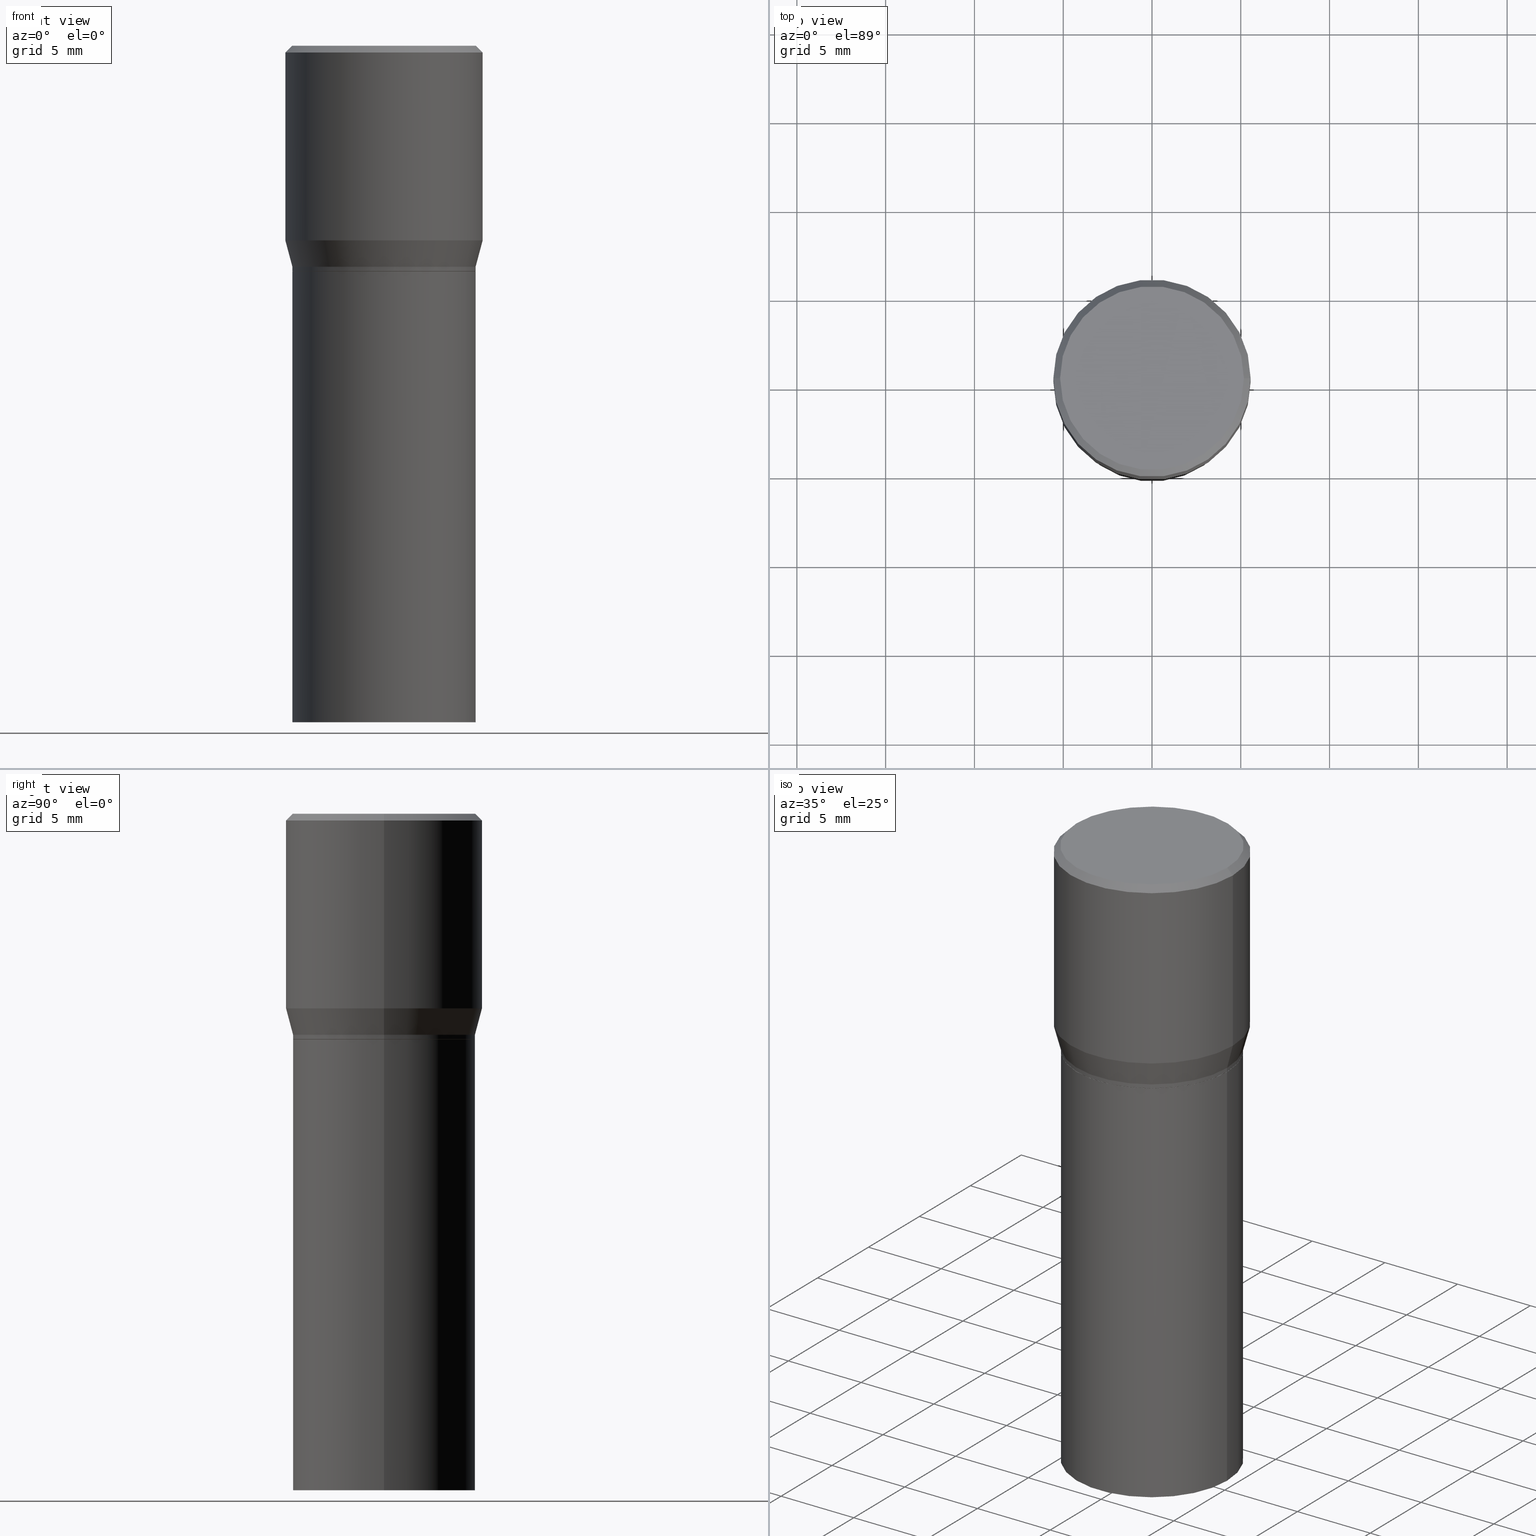
[diagram: canonical four-view strip — front | top / right | iso, engineering-drawing reading convention]
A machine part, canonical four-view strip (front | top / right | iso — engineering-drawing reading convention). The complete STEP part file that produces these views, byte-faithful:
ISO-10303-21;
HEADER;
FILE_DESCRIPTION (( 'STEP AP203' ),
    '1' );
FILE_NAME ('39551.STEP',
    '2024-03-12T19:03:16',
    ( '' ),
    ( '' ),
    'SwSTEP 2.0',
    'SolidWorks 2023',
    '' );
FILE_SCHEMA (( 'CONFIG_CONTROL_DESIGN' ));
ENDSEC;

DATA;
#1 = DIRECTION ( 'NONE',  ( -2.445468806185136597E-29, 3.491481338843145583E-15, 1.000000000000000000 ) ) ;
#2 = FACE_OUTER_BOUND ( 'NONE', #45, .T. ) ;
#3 = ADVANCED_FACE ( 'NONE', ( #2 ), #296, .F. ) ;
#4 = VERTEX_POINT ( 'NONE', #233 ) ;
#5 = DIRECTION ( 'NONE',  ( 2.438088387897960049E-29, -3.491481338843145188E-15, -1.000000000000000000 ) ) ;
#6 = EDGE_LOOP ( 'NONE', ( #171, #259 ) ) ;
#7 = ORIENTED_EDGE ( 'NONE', *, *, #75, .F. ) ;
#8 = DIRECTION ( 'NONE',  ( -2.445468806185136597E-29, 3.491481338843145583E-15, 1.000000000000000000 ) ) ;
#9 = AXIS2_PLACEMENT_3D ( 'NONE', #32, #358, #170 ) ;
#10 = APPROVAL_PERSON_ORGANIZATION ( #112, #124, #216 ) ;
#11 = DIRECTION ( 'NONE',  ( -2.445468806185136597E-29, 3.491481338843145583E-15, 1.000000000000000000 ) ) ;
#12 = DIRECTION ( 'NONE',  ( -2.445468806185136877E-29, 3.491481338843145188E-15, 1.000000000000000000 ) ) ;
#13 = SHAPE_DEFINITION_REPRESENTATION ( #65, #16 ) ;
#14 = ORIENTED_EDGE ( 'NONE', *, *, #75, .T. ) ;
#15 = CARTESIAN_POINT ( 'NONE',  ( 3.576687321579069994E-29, -5.368277968210015545E-15, -1.500000000000000222 ) ) ;
#16 = ADVANCED_BREP_SHAPE_REPRESENTATION ( '39551', ( #213, #49, #403 ), #249 ) ;
#17 = FACE_OUTER_BOUND ( 'NONE', #205, .T. ) ;
#18 = VERTEX_POINT ( 'NONE', #134 ) ;
#19 = EDGE_CURVE ( 'NONE', #73, #389, #262, .T. ) ;
#20 = DIRECTION ( 'NONE',  ( -1.000000000000000000, 6.982962677686266711E-15, 0.000000000000000000 ) ) ;
#21 = PERSON_AND_ORGANIZATION_ROLE ( 'creator' ) ;
#22 = AXIS2_PLACEMENT_3D ( 'NONE', #69, #181, #142 ) ;
#23 = APPROVAL_PERSON_ORGANIZATION ( #442, #24, #370 ) ;
#24 = APPROVAL ( #448, 'UNSPECIFIED' ) ;
#25 = ORIENTED_EDGE ( 'NONE', *, *, #329, .F. ) ;
#26 = CC_DESIGN_PERSON_AND_ORGANIZATION_ASSIGNMENT ( #460, #428, ( #62 ) ) ;
#27 = LINE ( 'NONE', #269, #381 ) ;
#28 = DATE_AND_TIME ( #61, #304 ) ;
#29 = PERSON_AND_ORGANIZATION ( #240, #209 ) ;
#30 = DIRECTION ( 'NONE',  ( 1.000000000000000000, -6.982962677686266711E-15, 4.876176775795935793E-29 ) ) ;
#31 = CIRCLE ( 'NONE', #288, 0.2031000000000000028 ) ;
#32 = CARTESIAN_POINT ( 'NONE',  ( 1.222734403092568719E-29, -1.745740669421573186E-15, -0.5000000000000001110 ) ) ;
#33 = CARTESIAN_POINT ( 'NONE',  ( 0.2031000000000000028, -3.162234648590232655E-15, -0.4995000000000001661 ) ) ;
#34 = LINE ( 'NONE', #67, #157 ) ;
#35 = DIRECTION ( 'NONE',  ( 1.000000000000000000, -6.982962677686266711E-15, 4.876176775795935232E-29 ) ) ;
#36 = EDGE_LOOP ( 'NONE', ( #224, #309, #203, #357 ) ) ;
#37 = CC_DESIGN_PERSON_AND_ORGANIZATION_ASSIGNMENT ( #152, #160, ( #201 ) ) ;
#38 = FACE_OUTER_BOUND ( 'NONE', #362, .T. ) ;
#39 = ORIENTED_EDGE ( 'NONE', *, *, #459, .T. ) ;
#40 = CIRCLE ( 'NONE', #138, 0.2187500000000000000 ) ;
#41 = DIRECTION ( 'NONE',  ( 1.000000000000000000, -6.982962677686265922E-15, 4.876176775795935793E-29 ) ) ;
#42 = CARTESIAN_POINT ( 'NONE',  ( 0.2031000000000000028, -6.655461728102798952E-15, -1.500000000000000222 ) ) ;
#43 = VERTEX_POINT ( 'NONE', #175 ) ;
#44 = DIRECTION ( 'NONE',  ( 1.000000000000000000, -6.982962677686266711E-15, 0.000000000000000000 ) ) ;
#45 = EDGE_LOOP ( 'NONE', ( #52, #198 ) ) ;
#46 = DIRECTION ( 'NONE',  ( 1.000000000000000000, -6.982962677686266711E-15, 4.876176775795935793E-29 ) ) ;
#47 = FACE_OUTER_BOUND ( 'NONE', #108, .T. ) ;
#48 = CIRCLE ( 'NONE', #416, 0.2031000000000000583 ) ;
#49 = MANIFOLD_SOLID_BREP ( 'Body-Move/Copy2[2]', #178 ) ;
#50 = CC_DESIGN_PERSON_AND_ORGANIZATION_ASSIGNMENT ( #56, #21, ( #220 ) ) ;
#51 = DATE_TIME_ROLE ( 'classification_date' ) ;
#52 = ORIENTED_EDGE ( 'NONE', *, *, #145, .T. ) ;
#53 = DIRECTION ( 'NONE',  ( 1.000000000000000000, -6.982962677686265922E-15, 0.000000000000000000 ) ) ;
#54 = AXIS2_PLACEMENT_3D ( 'NONE', #136, #98, #295 ) ;
#55 = LOCAL_TIME ( 15, 3, 16.00000000000000000, #367 ) ;
#56 = PERSON_AND_ORGANIZATION ( #240, #209 ) ;
#57 = ORIENTED_EDGE ( 'NONE', *, *, #361, .F. ) ;
#58 = ORIENTED_EDGE ( 'NONE', *, *, #236, .T. ) ;
#59 = DIRECTION ( 'NONE',  ( 1.000000000000000000, -6.982962677686266711E-15, 0.000000000000000000 ) ) ;
#60 = CIRCLE ( 'NONE', #9, 0.2026000000000000023 ) ;
#61 = CALENDAR_DATE ( 2024, 12, 3 ) ;
#62 = PRODUCT_DEFINITION_FORMATION_WITH_SPECIFIED_SOURCE ( 'ANY', '', #421, .NOT_KNOWN. ) ;
#63 = CARTESIAN_POINT ( 'NONE',  ( 1.222734403092568719E-29, -1.745740669421573186E-15, -0.5000000000000001110 ) ) ;
#64 = EDGE_CURVE ( 'NONE', #389, #73, #450, .T. ) ;
#65 = PRODUCT_DEFINITION_SHAPE ( 'NONE', 'NONE',  #220 ) ;
#66 = AXIS2_PLACEMENT_3D ( 'NONE', #179, #324, #44 ) ;
#67 = CARTESIAN_POINT ( 'NONE',  ( -0.2187500000000000000, 1.475150865661223567E-15, -0.01499999999999999944 ) ) ;
#68 = VERTEX_POINT ( 'NONE', #430 ) ;
#69 = CARTESIAN_POINT ( 'NONE',  ( 0.000000000000000000, 0.000000000000000000, 0.000000000000000000 ) ) ;
#70 = ORIENTED_EDGE ( 'NONE', *, *, #19, .T. ) ;
#71 = ORIENTED_EDGE ( 'NONE', *, *, #314, .T. ) ;
#72 = FACE_OUTER_BOUND ( 'NONE', #244, .T. ) ;
#73 = VERTEX_POINT ( 'NONE', #97 ) ;
#74 = CARTESIAN_POINT ( 'NONE',  ( 0.000000000000000000, 0.000000000000000000, 0.000000000000000000 ) ) ;
#75 = EDGE_CURVE ( 'NONE', #113, #4, #437, .T. ) ;
#76 = CARTESIAN_POINT ( 'NONE',  ( 0.000000000000000000, 0.000000000000000000, 0.000000000000000000 ) ) ;
#77 = PLANE ( 'NONE',  #323 ) ;
#78 = CARTESIAN_POINT ( 'NONE',  ( 1.198279715030717173E-29, -1.710825856033141537E-15, -0.4900000000000001021 ) ) ;
#79 = CARTESIAN_POINT ( 'NONE',  ( -0.2031000000000000583, -1.101508221355132898E-16, -0.4900000000000001021 ) ) ;
#80 = AXIS2_PLACEMENT_3D ( 'NONE', #63, #387, #215 ) ;
#81 = DIMENSIONAL_EXPONENTS ( 1.000000000000000000, 0.000000000000000000, 0.000000000000000000, 0.000000000000000000, 0.000000000000000000, 0.000000000000000000, 0.000000000000000000 ) ;
#82 = EDGE_CURVE ( 'NONE', #307, #325, #359, .T. ) ;
#83 = CALENDAR_DATE ( 2024, 12, 3 ) ;
#84 = ORIENTED_EDGE ( 'NONE', *, *, #260, .F. ) ;
#85 = ORIENTED_EDGE ( 'NONE', *, *, #434, .F. ) ;
#86 = CARTESIAN_POINT ( 'NONE',  ( -0.2031000000000000028, -2.048369042514382480E-15, -1.500000000000000222 ) ) ;
#87 = ORIENTED_EDGE ( 'NONE', *, *, #361, .T. ) ;
#88 = AXIS2_PLACEMENT_3D ( 'NONE', #388, #435, #107 ) ;
#89 = AXIS2_PLACEMENT_3D ( 'NONE', #456, #197, #20 ) ;
#90 = ADVANCED_FACE ( 'NONE', ( #405 ), #212, .T. ) ;
#91 = MECHANICAL_CONTEXT ( 'NONE', #127, 'mechanical' ) ;
#92 = CARTESIAN_POINT ( 'NONE',  ( -0.2026000000000000023, -3.061810867716101928E-16, -0.5000000000000001110 ) ) ;
#93 = VECTOR ( 'NONE', #12, 39.37007874015748143 ) ;
#94 = CARTESIAN_POINT ( 'NONE',  ( -2.592568563193567003E-45, 3.701500806376036554E-31, 1.060151966214568974E-16 ) ) ;
#95 = AXIS2_PLACEMENT_3D ( 'NONE', #15, #372, #182 ) ;
#96 = EDGE_CURVE ( 'NONE', #43, #401, #463, .T. ) ;
#97 = CARTESIAN_POINT ( 'NONE',  ( -0.2037499999999999867, 1.448964755619900421E-15, 1.060151966214468518E-16 ) ) ;
#98 = DIRECTION ( 'NONE',  ( -2.445468806185136597E-29, 3.491481338843145583E-15, 1.000000000000000000 ) ) ;
#99 = ORIENTED_EDGE ( 'NONE', *, *, #346, .F. ) ;
#100 = LINE ( 'NONE', #391, #386 ) ;
#101 = DIRECTION ( 'NONE',  ( 1.000000000000000000, -6.982962677686264344E-15, 0.000000000000000000 ) ) ;
#102 = ADVANCED_FACE ( 'NONE', ( #287 ), #384, .T. ) ;
#103 = CONICAL_SURFACE ( 'NONE', #278, 0.2026000000000000023, 0.7853981633974824739 ) ;
#104 = VERTEX_POINT ( 'NONE', #33 ) ;
#105 = LINE ( 'NONE', #331, #128 ) ;
#106 = DIRECTION ( 'NONE',  ( -2.445468806185136597E-29, 3.491481338843145583E-15, 1.000000000000000000 ) ) ;
#107 = DIRECTION ( 'NONE',  ( -1.000000000000000000, 6.982962677686265922E-15, -4.876176775795935793E-29 ) ) ;
#108 = EDGE_LOOP ( 'NONE', ( #87, #227, #165, #85 ) ) ;
#109 = CARTESIAN_POINT ( 'NONE',  ( 3.668203209277705088E-31, -5.237222008264718399E-17, -0.01499999999999999944 ) ) ;
#110 = COORDINATED_UNIVERSAL_TIME_OFFSET ( 5, 0, .BEHIND. ) ;
#111 = FACE_OUTER_BOUND ( 'NONE', #297, .T. ) ;
#112 = PERSON_AND_ORGANIZATION ( #240, #209 ) ;
#113 = VERTEX_POINT ( 'NONE', #173 ) ;
#114 = DIRECTION ( 'NONE',  ( 1.000000000000000000, -6.982962677686266711E-15, 0.000000000000000000 ) ) ;
#115 = VECTOR ( 'NONE', #286, 39.37007874015748143 ) ;
#116 = DATE_AND_TIME ( #267, #226 ) ;
#117 = DATE_AND_TIME ( #207, #248 ) ;
#118 = DIRECTION ( 'NONE',  ( 1.000000000000000000, -6.982962677686268288E-15, 0.000000000000000000 ) ) ;
#119 = DATE_AND_TIME ( #83, #55 ) ;
#120 = ORIENTED_EDGE ( 'NONE', *, *, #314, .F. ) ;
#121 = FACE_OUTER_BOUND ( 'NONE', #246, .T. ) ;
#122 = AXIS2_PLACEMENT_3D ( 'NONE', #422, #429, #263 ) ;
#123 = APPROVAL_DATE_TIME ( #28, #424 ) ;
#124 = APPROVAL ( #438, 'UNSPECIFIED' ) ;
#125 = UNCERTAINTY_MEASURE_WITH_UNIT (LENGTH_MEASURE( 1.000000000000000082E-05 ), #255, 'distance_accuracy_value', 'NONE');
#126 = CARTESIAN_POINT ( 'NONE',  ( -0.2031000000000000028, 1.443112296328763497E-15, -9.990357168307714203E-30 ) ) ;
#127 = APPLICATION_CONTEXT ( 'configuration controlled 3d designs of mechanical parts and assemblies' ) ;
#128 = VECTOR ( 'NONE', #294, 39.37007874015748143 ) ;
#129 = DIRECTION ( 'NONE',  ( 0.7071067811865715536, -2.468850131082509496E-15, 0.7071067811865232589 ) ) ;
#130 = CARTESIAN_POINT ( 'NONE',  ( 1.222734403092568719E-29, -1.745740669421573186E-15, -0.5000000000000001110 ) ) ;
#131 = CARTESIAN_POINT ( 'NONE',  ( -0.2031000000000000028, -3.008826324233883330E-16, -0.4995000000000001661 ) ) ;
#132 = EDGE_CURVE ( 'NONE', #401, #104, #321, .T. ) ;
#133 = LINE ( 'NONE', #457, #322 ) ;
#134 = CARTESIAN_POINT ( 'NONE',  ( -0.2187500000000000000, 7.746759649129616577E-16, -0.01499999999999999944 ) ) ;
#135 = DIRECTION ( 'NONE',  ( -2.445468806185136597E-29, 3.491481338843145583E-15, 1.000000000000000000 ) ) ;
#136 = CARTESIAN_POINT ( 'NONE',  ( 0.000000000000000000, 0.000000000000000000, 0.000000000000000000 ) ) ;
#137 = DIRECTION ( 'NONE',  ( -2.445468806185136597E-29, 3.491481338843145583E-15, 1.000000000000000000 ) ) ;
#138 = AXIS2_PLACEMENT_3D ( 'NONE', #311, #281, #59 ) ;
#139 = CARTESIAN_POINT ( 'NONE',  ( 1.222734403092568719E-29, -1.745740669421573186E-15, -0.5000000000000001110 ) ) ;
#140 = DIRECTION ( 'NONE',  ( 1.000000000000000000, -6.982962677686266711E-15, 4.875065411617369217E-29 ) ) ;
#141 = DIRECTION ( 'NONE',  ( -2.445468806185136597E-29, 3.491481338843145583E-15, 1.000000000000000000 ) ) ;
#142 = DIRECTION ( 'NONE',  ( 1.000000000000000000, -6.982962677686266711E-15, 4.876176775795935793E-29 ) ) ;
#143 = ORIENTED_EDGE ( 'NONE', *, *, #199, .F. ) ;
#144 = DIRECTION ( 'NONE',  ( -1.000000000000000000, 6.982962677686265922E-15, -4.876176775795935793E-29 ) ) ;
#145 = EDGE_CURVE ( 'NONE', #378, #237, #192, .T. ) ;
#146 = ORIENTED_EDGE ( 'NONE', *, *, #199, .T. ) ;
#147 = DIRECTION ( 'NONE',  ( -2.445468806185136597E-29, 3.491481338843145583E-15, 1.000000000000000000 ) ) ;
#148 = EDGE_CURVE ( 'NONE', #73, #18, #34, .T. ) ;
#149 = AXIS2_PLACEMENT_3D ( 'NONE', #315, #326, #400 ) ;
#150 = CC_DESIGN_SECURITY_CLASSIFICATION ( #201, ( #62 ) ) ;
#151 = CARTESIAN_POINT ( 'NONE',  ( 3.668203209277704895E-29, -5.237222008264718177E-15, -1.500000000000000222 ) ) ;
#152 = PERSON_AND_ORGANIZATION ( #240, #209 ) ;
#153 = ORIENTED_EDGE ( 'NONE', *, *, #96, .F. ) ;
#154 = DIRECTION ( 'NONE',  ( -2.445468806185136877E-29, 3.491481338843145188E-15, 1.000000000000000000 ) ) ;
#155 = EDGE_CURVE ( 'NONE', #449, #68, #48, .T. ) ;
#156 = ORIENTED_EDGE ( 'NONE', *, *, #251, .F. ) ;
#157 = VECTOR ( 'NONE', #223, 39.37007874015748143 ) ;
#158 = APPROVAL_PERSON_ORGANIZATION ( #29, #424, #349 ) ;
#159 = DIRECTION ( 'NONE',  ( 1.000000000000000000, -6.982962677686265922E-15, 0.000000000000000000 ) ) ;
#160 = PERSON_AND_ORGANIZATION_ROLE ( 'classification_officer' ) ;
#161 = CALENDAR_DATE ( 2024, 12, 3 ) ;
#162 = AXIS2_PLACEMENT_3D ( 'NONE', #74, #106, #46 ) ;
#163 = LOCAL_TIME ( 15, 3, 16.00000000000000000, #202 ) ;
#164 = EDGE_LOOP ( 'NONE', ( #188, #229, #327, #280 ) ) ;
#165 = ORIENTED_EDGE ( 'NONE', *, *, #459, .F. ) ;
#166 = CC_DESIGN_PERSON_AND_ORGANIZATION_ASSIGNMENT ( #340, #374, ( #62 ) ) ;
#167 = ADVANCED_FACE ( 'NONE', ( #348 ), #402, .T. ) ;
#168 = DIRECTION ( 'NONE',  ( -2.445468806185136597E-29, 3.491481338843145583E-15, 1.000000000000000000 ) ) ;
#169 = AXIS2_PLACEMENT_3D ( 'NONE', #109, #268, #335 ) ;
#170 = DIRECTION ( 'NONE',  ( 1.000000000000000000, -6.982962677686268288E-15, 0.000000000000000000 ) ) ;
#171 = ORIENTED_EDGE ( 'NONE', *, *, #204, .F. ) ;
#172 = COORDINATED_UNIVERSAL_TIME_OFFSET ( 5, 0, .BEHIND. ) ;
#173 = CARTESIAN_POINT ( 'NONE',  ( -0.2187500000000000000, 4.741191543335144142E-17, -0.4315934048615475138 ) ) ;
#174 = DIRECTION ( 'NONE',  ( 1.000000000000000000, -6.982962677686265922E-15, 0.000000000000000000 ) ) ;
#175 = CARTESIAN_POINT ( 'NONE',  ( -0.2026000000000000023, -3.035318595974993861E-16, -0.5000000000000001110 ) ) ;
#176 = DIRECTION ( 'NONE',  ( 1.000000000000000000, -6.982962677686264344E-15, 0.000000000000000000 ) ) ;
#177 =( LENGTH_UNIT ( ) NAMED_UNIT ( * ) SI_UNIT ( $, .METRE. ) );
#178 = CLOSED_SHELL ( 'NONE', ( #310, #167, #383, #441, #415, #283, #90, #452, #379, #409, #305, #377 ) ) ;
#179 = CARTESIAN_POINT ( 'NONE',  ( 1.221511668689476057E-29, -1.743994928752151682E-15, -0.4995000000000001661 ) ) ;
#180 = AXIS2_PLACEMENT_3D ( 'NONE', #76, #393, #30 ) ;
#181 = DIRECTION ( 'NONE',  ( -2.445468806185136597E-29, 3.491481338843145583E-15, 1.000000000000000000 ) ) ;
#182 = DIRECTION ( 'NONE',  ( 1.000000000000000000, -6.982962677686265922E-15, 4.876176775795935793E-29 ) ) ;
#183 = ORIENTED_EDGE ( 'NONE', *, *, #148, .T. ) ;
#184 = CC_DESIGN_DATE_AND_TIME_ASSIGNMENT ( #116, #51, ( #201 ) ) ;
#185 = CC_DESIGN_DATE_AND_TIME_ASSIGNMENT ( #117, #344, ( #220 ) ) ;
#186 = EDGE_LOOP ( 'NONE', ( #70, #187 ) ) ;
#187 = ORIENTED_EDGE ( 'NONE', *, *, #64, .T. ) ;
#188 = ORIENTED_EDGE ( 'NONE', *, *, #241, .F. ) ;
#189 = PLANE ( 'NONE',  #253 ) ;
#190 = EDGE_LOOP ( 'NONE', ( #354, #14, #308, #99 ) ) ;
#191 = CARTESIAN_POINT ( 'NONE',  ( 0.2031000000000000028, -1.418239719838080775E-15, 9.903515031641546145E-30 ) ) ;
#192 = CIRCLE ( 'NONE', #80, 0.2031000000000000028 ) ;
#193 = ORIENTED_EDGE ( 'NONE', *, *, #352, .F. ) ;
#194 = CONICAL_SURFACE ( 'NONE', #169, 0.2187500000000000000, 0.7853981633974450594 ) ;
#195 = CARTESIAN_POINT ( 'NONE',  ( 0.2037499999999999867, -1.475466312070559275E-15, 1.060151966214670170E-16 ) ) ;
#196 = DIRECTION ( 'NONE',  ( -0.2588190451025211836, 5.211531920934547886E-15, 0.9659258262890679791 ) ) ;
#197 = DIRECTION ( 'NONE',  ( 2.445468806185136597E-29, -3.491481338843145583E-15, -1.000000000000000000 ) ) ;
#198 = ORIENTED_EDGE ( 'NONE', *, *, #260, .T. ) ;
#199 = EDGE_CURVE ( 'NONE', #401, #43, #60, .T. ) ;
#200 = CIRCLE ( 'NONE', #312, 0.2031000000000000028 ) ;
#201 = SECURITY_CLASSIFICATION ( '', '', #404 ) ;
#202 = COORDINATED_UNIVERSAL_TIME_OFFSET ( 5, 0, .BEHIND. ) ;
#203 = ORIENTED_EDGE ( 'NONE', *, *, #247, .T. ) ;
#204 = EDGE_CURVE ( 'NONE', #325, #307, #200, .T. ) ;
#205 = EDGE_LOOP ( 'NONE', ( #276, #465, #156, #222 ) ) ;
#206 = CARTESIAN_POINT ( 'NONE',  ( 1.222734403092568719E-29, -1.745740669421573186E-15, -0.5000000000000001110 ) ) ;
#207 = CALENDAR_DATE ( 2024, 12, 3 ) ;
#208 = VECTOR ( 'NONE', #129, 39.37007874015748854 ) ;
#209 = ORGANIZATION ( 'UNSPECIFIED', 'UNSPECIFIED', '' ) ;
#210 = EDGE_CURVE ( 'NONE', #355, #449, #133, .T. ) ;
#211 = CARTESIAN_POINT ( 'NONE',  ( 1.198279715030717173E-29, -1.710825856033141537E-15, -0.4900000000000001021 ) ) ;
#212 = CYLINDRICAL_SURFACE ( 'NONE', #270, 0.2187500000000000000 ) ;
#213 = MANIFOLD_SOLID_BREP ( 'Body-Move/Copy2[1]', #316 ) ;
#214 = DIRECTION ( 'NONE',  ( 0.000000000000000000, 0.000000000000000000, 1.000000000000000000 ) ) ;
#215 = DIRECTION ( 'NONE',  ( 1.000000000000000000, -6.982962677686265922E-15, 0.000000000000000000 ) ) ;
#216 = APPROVAL_ROLE ( '' ) ;
#217 = PERSON_AND_ORGANIZATION_ROLE ( 'design_owner' ) ;
#218 = CARTESIAN_POINT ( 'NONE',  ( 3.668203209277704895E-29, -5.237222008264718177E-15, -1.500000000000000222 ) ) ;
#219 = PRODUCT_RELATED_PRODUCT_CATEGORY ( 'detail', '', ( #421 ) ) ;
#220 = PRODUCT_DEFINITION ( 'UNKNOWN', '', #62, #353 ) ;
#221 = CARTESIAN_POINT ( 'NONE',  ( -2.592568563193567003E-45, 3.701500806376036554E-31, 1.060151966214568974E-16 ) ) ;
#222 = ORIENTED_EDGE ( 'NONE', *, *, #247, .F. ) ;
#223 = DIRECTION ( 'NONE',  ( -0.7071067811865452413, 2.468850131082233000E-15, -0.7071067811865497932 ) ) ;
#224 = ORIENTED_EDGE ( 'NONE', *, *, #210, .F. ) ;
#225 = VECTOR ( 'NONE', #333, 39.37007874015748143 ) ;
#226 = LOCAL_TIME ( 15, 3, 16.00000000000000000, #110 ) ;
#227 = ORIENTED_EDGE ( 'NONE', *, *, #385, .T. ) ;
#228 = LINE ( 'NONE', #191, #225 ) ;
#229 = ORIENTED_EDGE ( 'NONE', *, *, #96, .T. ) ;
#230 = FACE_OUTER_BOUND ( 'NONE', #394, .T. ) ;
#231 = APPLICATION_CONTEXT ( 'configuration controlled 3d designs of mechanical parts and assemblies' ) ;
#232 = FACE_OUTER_BOUND ( 'NONE', #36, .T. ) ;
#233 = CARTESIAN_POINT ( 'NONE',  ( 0.2187500000000000000, -3.034423404785738170E-15, -0.4315934048615475138 ) ) ;
#234 = ORIENTED_EDGE ( 'NONE', *, *, #289, .T. ) ;
#235 = CARTESIAN_POINT ( 'NONE',  ( 1.221511668689476057E-29, -1.743994928752151682E-15, -0.4995000000000001661 ) ) ;
#236 = EDGE_CURVE ( 'NONE', #307, #237, #420, .T. ) ;
#237 = VERTEX_POINT ( 'NONE', #423 ) ;
#238 = CIRCLE ( 'NONE', #332, 0.2187500000000000000 ) ;
#239 = PLANE ( 'NONE',  #95 ) ;
#240 = PERSON ( 'UNSPECIFIED', 'UNSPECIFIED', 'UNSPECIFIED', ('UNSPECIFIED'), ('UNSPECIFIED'), ('UNSPECIFIED') ) ;
#241 = EDGE_CURVE ( 'NONE', #43, #355, #282, .T. ) ;
#242 = CIRCLE ( 'NONE', #382, 0.2031000000000000583 ) ;
#243 = AXIS2_PLACEMENT_3D ( 'NONE', #264, #266, #397 ) ;
#244 = EDGE_LOOP ( 'NONE', ( #143, #153 ) ) ;
#245 = DATE_AND_TIME ( #161, #163 ) ;
#246 = EDGE_LOOP ( 'NONE', ( #363, #343, #71, #7 ) ) ;
#247 = EDGE_CURVE ( 'NONE', #104, #68, #440, .T. ) ;
#248 = LOCAL_TIME ( 15, 3, 16.00000000000000000, #380 ) ;
#249 =( GEOMETRIC_REPRESENTATION_CONTEXT ( 3 ) GLOBAL_UNCERTAINTY_ASSIGNED_CONTEXT ( ( #125 ) ) GLOBAL_UNIT_ASSIGNED_CONTEXT ( ( #255, #427, #458 ) ) REPRESENTATION_CONTEXT ( 'NONE', 'WORKASPACE' ) );
#250 = DIRECTION ( 'NONE',  ( -2.445468806185136597E-29, 3.491481338843145583E-15, 1.000000000000000000 ) ) ;
#251 = EDGE_CURVE ( 'NONE', #68, #449, #242, .T. ) ;
#252 = AXIS2_PLACEMENT_3D ( 'NONE', #151, #338, #101 ) ;
#253 = AXIS2_PLACEMENT_3D ( 'NONE', #298, #436, #41 ) ;
#254 = ORIENTED_EDGE ( 'NONE', *, *, #236, .F. ) ;
#255 =( CONVERSION_BASED_UNIT ( 'INCH', #356 ) LENGTH_UNIT ( ) NAMED_UNIT ( #81 ) );
#256 = ORIENTED_EDGE ( 'NONE', *, *, #204, .T. ) ;
#257 = LINE ( 'NONE', #461, #303 ) ;
#258 = ORIENTED_EDGE ( 'NONE', *, *, #145, .F. ) ;
#259 = ORIENTED_EDGE ( 'NONE', *, *, #82, .F. ) ;
#260 = EDGE_CURVE ( 'NONE', #237, #378, #31, .T. ) ;
#261 = DIRECTION ( 'NONE',  ( 1.000000000000000000, -6.982962677686265133E-15, 0.000000000000000000 ) ) ;
#262 = CIRCLE ( 'NONE', #299, 0.2037499999999999867 ) ;
#263 = DIRECTION ( 'NONE',  ( 1.000000000000000000, -6.982962677686266711E-15, 0.000000000000000000 ) ) ;
#264 = CARTESIAN_POINT ( 'NONE',  ( 1.198279715030717173E-29, -1.710825856033141537E-15, -0.4900000000000001021 ) ) ;
#265 = LINE ( 'NONE', #396, #425 ) ;
#266 = DIRECTION ( 'NONE',  ( -2.445468806185136597E-29, 3.491481338843145583E-15, 1.000000000000000000 ) ) ;
#267 = CALENDAR_DATE ( 2024, 12, 3 ) ;
#268 = DIRECTION ( 'NONE',  ( 2.445468806185136597E-29, -3.491481338843145583E-15, -1.000000000000000000 ) ) ;
#269 = CARTESIAN_POINT ( 'NONE',  ( -0.2031000000000000583, -2.677135597043777931E-16, -0.4900000000000001021 ) ) ;
#270 = AXIS2_PLACEMENT_3D ( 'NONE', #290, #250, #35 ) ;
#271 = ORIENTED_EDGE ( 'NONE', *, *, #132, .F. ) ;
#272 = ORIENTED_EDGE ( 'NONE', *, *, #64, .F. ) ;
#273 = CYLINDRICAL_SURFACE ( 'NONE', #162, 0.2031000000000000028 ) ;
#274 = CC_DESIGN_PERSON_AND_ORGANIZATION_ASSIGNMENT ( #319, #217, ( #421 ) ) ;
#275 = APPROVAL_DATE_TIME ( #119, #24 ) ;
#276 = ORIENTED_EDGE ( 'NONE', *, *, #352, .T. ) ;
#277 = FACE_OUTER_BOUND ( 'NONE', #164, .T. ) ;
#278 = AXIS2_PLACEMENT_3D ( 'NONE', #410, #447, #118 ) ;
#279 = CONICAL_SURFACE ( 'NONE', #89, 0.2187500000000000000, 0.7853981633974450594 ) ;
#280 = ORIENTED_EDGE ( 'NONE', *, *, #399, .F. ) ;
#281 = DIRECTION ( 'NONE',  ( -2.445468806185136597E-29, 3.491481338843145583E-15, 1.000000000000000000 ) ) ;
#282 = LINE ( 'NONE', #92, #454 ) ;
#283 = ADVANCED_FACE ( 'NONE', ( #121 ), #444, .T. ) ;
#284 = DIRECTION ( 'NONE',  ( 1.000000000000000000, -6.982962677686265922E-15, 0.000000000000000000 ) ) ;
#285 = CARTESIAN_POINT ( 'NONE',  ( 0.000000000000000000, 0.000000000000000000, 0.000000000000000000 ) ) ;
#286 = DIRECTION ( 'NONE',  ( -2.445468806185136877E-29, 3.491481338843145188E-15, 1.000000000000000000 ) ) ;
#287 = FACE_OUTER_BOUND ( 'NONE', #360, .T. ) ;
#288 = AXIS2_PLACEMENT_3D ( 'NONE', #206, #407, #159 ) ;
#289 = EDGE_CURVE ( 'NONE', #449, #113, #27, .T. ) ;
#290 = CARTESIAN_POINT ( 'NONE',  ( 0.000000000000000000, 0.000000000000000000, 0.000000000000000000 ) ) ;
#291 = DIRECTION ( 'NONE',  ( 0.2588190451025211836, 1.565188264969622559E-15, 0.9659258262890679791 ) ) ;
#292 = DIRECTION ( 'NONE',  ( 1.000000000000000000, -6.982962677686266711E-15, 4.875065411617369217E-29 ) ) ;
#293 = VERTEX_POINT ( 'NONE', #306 ) ;
#294 = DIRECTION ( 'NONE',  ( -2.445468806185136877E-29, 3.491481338843145188E-15, 1.000000000000000000 ) ) ;
#295 = DIRECTION ( 'NONE',  ( 1.000000000000000000, -6.982962677686266711E-15, 4.876176775795935793E-29 ) ) ;
#296 = PLANE ( 'NONE',  #88 ) ;
#297 = EDGE_LOOP ( 'NONE', ( #272, #406, #39, #365 ) ) ;
#298 = CARTESIAN_POINT ( 'NONE',  ( 1.222734403092568719E-29, -1.745740669421573186E-15, -0.5000000000000001110 ) ) ;
#299 = AXIS2_PLACEMENT_3D ( 'NONE', #94, #141, #292 ) ;
#300 = ORIENTED_EDGE ( 'NONE', *, *, #19, .F. ) ;
#301 = DIRECTION ( 'NONE',  ( -2.445468806185136597E-29, 3.491481338843145583E-15, 1.000000000000000000 ) ) ;
#302 = FACE_OUTER_BOUND ( 'NONE', #6, .T. ) ;
#303 = VECTOR ( 'NONE', #291, 39.37007874015748854 ) ;
#304 = LOCAL_TIME ( 15, 3, 16.00000000000000000, #172 ) ;
#305 = ADVANCED_FACE ( 'NONE', ( #277 ), #103, .T. ) ;
#306 = CARTESIAN_POINT ( 'NONE',  ( 0.2187500000000000000, -1.579895305826517922E-15, -0.01499999999999999944 ) ) ;
#307 = VERTEX_POINT ( 'NONE', #86 ) ;
#308 = ORIENTED_EDGE ( 'NONE', *, *, #434, .T. ) ;
#309 = ORIENTED_EDGE ( 'NONE', *, *, #399, .T. ) ;
#310 = ADVANCED_FACE ( 'NONE', ( #17 ), #273, .T. ) ;
#311 = CARTESIAN_POINT ( 'NONE',  ( 3.668203209277705088E-31, -5.237222008264718399E-17, -0.01499999999999999944 ) ) ;
#312 = AXIS2_PLACEMENT_3D ( 'NONE', #218, #318, #176 ) ;
#313 = DIRECTION ( 'NONE',  ( -2.445468806185136597E-29, 3.491481338843145583E-15, 1.000000000000000000 ) ) ;
#314 = EDGE_CURVE ( 'NONE', #68, #4, #257, .T. ) ;
#315 = CARTESIAN_POINT ( 'NONE',  ( 1.055448208544146876E-29, -1.506900319041867721E-15, -0.4315934048615475138 ) ) ;
#316 = CLOSED_SHELL ( 'NONE', ( #102, #412, #320, #3 ) ) ;
#317 = CIRCLE ( 'NONE', #122, 0.2187500000000000000 ) ;
#318 = DIRECTION ( 'NONE',  ( -2.445468806185136597E-29, 3.491481338843145583E-15, 1.000000000000000000 ) ) ;
#319 = PERSON_AND_ORGANIZATION ( #240, #209 ) ;
#320 = ADVANCED_FACE ( 'NONE', ( #38 ), #466, .T. ) ;
#321 = LINE ( 'NONE', #345, #208 ) ;
#322 = VECTOR ( 'NONE', #453, 39.37007874015748143 ) ;
#323 = AXIS2_PLACEMENT_3D ( 'NONE', #366, #5, #144 ) ;
#324 = DIRECTION ( 'NONE',  ( -2.445468806185136597E-29, 3.491481338843145583E-15, 1.000000000000000000 ) ) ;
#325 = VERTEX_POINT ( 'NONE', #42 ) ;
#326 = DIRECTION ( 'NONE',  ( -2.445468806185136597E-29, 3.491481338843145583E-15, 1.000000000000000000 ) ) ;
#327 = ORIENTED_EDGE ( 'NONE', *, *, #132, .T. ) ;
#328 = ORIENTED_EDGE ( 'NONE', *, *, #251, .T. ) ;
#329 = EDGE_CURVE ( 'NONE', #325, #378, #228, .T. ) ;
#330 = DIRECTION ( 'NONE',  ( -0.7071067811865715536, 7.493145998870439357E-15, 0.7071067811865232589 ) ) ;
#331 = CARTESIAN_POINT ( 'NONE',  ( 0.2187500000000000000, -1.527523085743870843E-15, 1.066663669705360885E-29 ) ) ;
#332 = AXIS2_PLACEMENT_3D ( 'NONE', #431, #8, #261 ) ;
#333 = DIRECTION ( 'NONE',  ( -2.445468806185136877E-29, 3.491481338843145188E-15, 1.000000000000000000 ) ) ;
#334 = CARTESIAN_POINT ( 'NONE',  ( 0.2031000000000000028, -1.418239719838080775E-15, 9.903515031641546145E-30 ) ) ;
#335 = DIRECTION ( 'NONE',  ( -1.000000000000000000, 6.982962677686266711E-15, 0.000000000000000000 ) ) ;
#336 = ORIENTED_EDGE ( 'NONE', *, *, #241, .T. ) ;
#337 = FACE_OUTER_BOUND ( 'NONE', #432, .T. ) ;
#338 = DIRECTION ( 'NONE',  ( -2.445468806185136597E-29, 3.491481338843145583E-15, 1.000000000000000000 ) ) ;
#339 = EDGE_CURVE ( 'NONE', #389, #293, #265, .T. ) ;
#340 = PERSON_AND_ORGANIZATION ( #240, #209 ) ;
#341 = APPROVAL_DATE_TIME ( #245, #124 ) ;
#342 = AXIS2_PLACEMENT_3D ( 'NONE', #235, #147, #114 ) ;
#343 = ORIENTED_EDGE ( 'NONE', *, *, #155, .T. ) ;
#344 = DATE_TIME_ROLE ( 'creation_date' ) ;
#345 = CARTESIAN_POINT ( 'NONE',  ( 0.2026000000000000023, -3.160488907920811151E-15, -0.5000000000000001110 ) ) ;
#346 = EDGE_CURVE ( 'NONE', #18, #293, #317, .T. ) ;
#347 = CARTESIAN_POINT ( 'NONE',  ( 0.2031000000000000028, -3.163980389259653764E-15, -0.5000000000000001110 ) ) ;
#348 = FACE_OUTER_BOUND ( 'NONE', #408, .T. ) ;
#349 = APPROVAL_ROLE ( '' ) ;
#350 = DIRECTION ( 'NONE',  ( 1.000000000000000000, -6.982962677686268288E-15, 0.000000000000000000 ) ) ;
#351 = CIRCLE ( 'NONE', #66, 0.2031000000000000028 ) ;
#352 = EDGE_CURVE ( 'NONE', #104, #355, #351, .T. ) ;
#353 = DESIGN_CONTEXT ( 'detailed design', #231, 'design' ) ;
#354 = ORIENTED_EDGE ( 'NONE', *, *, #385, .F. ) ;
#355 = VERTEX_POINT ( 'NONE', #131 ) ;
#356 = LENGTH_MEASURE_WITH_UNIT ( LENGTH_MEASURE( 0.02539999999999999897 ), #177 );
#357 = ORIENTED_EDGE ( 'NONE', *, *, #155, .F. ) ;
#358 = DIRECTION ( 'NONE',  ( -2.445468806185136597E-29, 3.491481338843145583E-15, 1.000000000000000000 ) ) ;
#359 = CIRCLE ( 'NONE', #252, 0.2031000000000000028 ) ;
#360 = EDGE_LOOP ( 'NONE', ( #256, #58, #258, #25 ) ) ;
#361 = EDGE_CURVE ( 'NONE', #4, #113, #238, .T. ) ;
#362 = EDGE_LOOP ( 'NONE', ( #254, #414, #462, #84 ) ) ;
#363 = ORIENTED_EDGE ( 'NONE', *, *, #289, .F. ) ;
#364 = DIRECTION ( 'NONE',  ( 0.7071067811865452413, -7.319954787623248157E-15, -0.7071067811865497932 ) ) ;
#365 = ORIENTED_EDGE ( 'NONE', *, *, #148, .F. ) ;
#366 = CARTESIAN_POINT ( 'NONE',  ( 1.422778645578576487E-15, 0.2037499999999999867, -6.583817244785623957E-16 ) ) ;
#367 = COORDINATED_UNIVERSAL_TIME_OFFSET ( 5, 0, .BEHIND. ) ;
#368 = CARTESIAN_POINT ( 'NONE',  ( 0.2026000000000000023, -3.160488907920811151E-15, -0.5000000000000001110 ) ) ;
#369 = AXIS2_PLACEMENT_3D ( 'NONE', #78, #11, #53 ) ;
#370 = APPROVAL_ROLE ( '' ) ;
#371 = ORIENTED_EDGE ( 'NONE', *, *, #339, .F. ) ;
#372 = DIRECTION ( 'NONE',  ( -2.438088387897960049E-29, 3.491481338843145188E-15, 1.000000000000000000 ) ) ;
#373 = CARTESIAN_POINT ( 'NONE',  ( 1.198279715030717173E-29, -1.710825856033141537E-15, -0.4900000000000001021 ) ) ;
#374 = PERSON_AND_ORGANIZATION_ROLE ( 'design_supplier' ) ;
#375 = ORIENTED_EDGE ( 'NONE', *, *, #346, .T. ) ;
#376 = AXIS2_PLACEMENT_3D ( 'NONE', #139, #135, #350 ) ;
#377 = ADVANCED_FACE ( 'NONE', ( #232 ), #439, .T. ) ;
#378 = VERTEX_POINT ( 'NONE', #347 ) ;
#379 = ADVANCED_FACE ( 'NONE', ( #390 ), #77, .F. ) ;
#380 = COORDINATED_UNIVERSAL_TIME_OFFSET ( 5, 0, .BEHIND. ) ;
#381 = VECTOR ( 'NONE', #196, 39.37007874015748854 ) ;
#382 = AXIS2_PLACEMENT_3D ( 'NONE', #373, #1, #174 ) ;
#383 = ADVANCED_FACE ( 'NONE', ( #111 ), #194, .T. ) ;
#384 = CYLINDRICAL_SURFACE ( 'NONE', #22, 0.2031000000000000028 ) ;
#385 = EDGE_CURVE ( 'NONE', #113, #18, #100, .T. ) ;
#386 = VECTOR ( 'NONE', #154, 39.37007874015748143 ) ;
#387 = DIRECTION ( 'NONE',  ( -2.445468806185136597E-29, 3.491481338843145583E-15, 1.000000000000000000 ) ) ;
#388 = CARTESIAN_POINT ( 'NONE',  ( 1.418239719838093003E-15, 0.2030999999999982819, -0.5000000000000007772 ) ) ;
#389 = VERTEX_POINT ( 'NONE', #195 ) ;
#390 = FACE_OUTER_BOUND ( 'NONE', #186, .T. ) ;
#391 = CARTESIAN_POINT ( 'NONE',  ( -0.2187500000000000000, 1.554312234475219157E-15, -1.076017050993260622E-29 ) ) ;
#392 = AXIS2_PLACEMENT_3D ( 'NONE', #130, #313, #418 ) ;
#393 = DIRECTION ( 'NONE',  ( -2.445468806185136597E-29, 3.491481338843145583E-15, 1.000000000000000000 ) ) ;
#394 = EDGE_LOOP ( 'NONE', ( #371, #300, #183, #375 ) ) ;
#395 = DIRECTION ( 'NONE',  ( 1.000000000000000000, -6.982962677686266711E-15, 4.876176775795935232E-29 ) ) ;
#396 = CARTESIAN_POINT ( 'NONE',  ( 0.2187500000000000000, -1.553106157095169608E-15, -0.01499999999999999944 ) ) ;
#397 = DIRECTION ( 'NONE',  ( 1.000000000000000000, -6.982962677686265922E-15, 0.000000000000000000 ) ) ;
#398 = CARTESIAN_POINT ( 'NONE',  ( 0.000000000000000000, 0.000000000000000000, 0.000000000000000000 ) ) ;
#399 = EDGE_CURVE ( 'NONE', #355, #104, #446, .T. ) ;
#400 = DIRECTION ( 'NONE',  ( 1.000000000000000000, -6.982962677686265133E-15, 0.000000000000000000 ) ) ;
#401 = VERTEX_POINT ( 'NONE', #368 ) ;
#402 = CONICAL_SURFACE ( 'NONE', #392, 0.2026000000000000023, 0.7853981633974824739 ) ;
#403 = AXIS2_PLACEMENT_3D ( 'NONE', #285, #214, #419 ) ;
#404 = SECURITY_CLASSIFICATION_LEVEL ( 'unclassified' ) ;
#405 = FACE_OUTER_BOUND ( 'NONE', #190, .T. ) ;
#406 = ORIENTED_EDGE ( 'NONE', *, *, #339, .T. ) ;
#407 = DIRECTION ( 'NONE',  ( -2.445468806185136597E-29, 3.491481338843145583E-15, 1.000000000000000000 ) ) ;
#408 = EDGE_LOOP ( 'NONE', ( #146, #336, #193, #271 ) ) ;
#409 = ADVANCED_FACE ( 'NONE', ( #72 ), #189, .F. ) ;
#410 = CARTESIAN_POINT ( 'NONE',  ( 1.222734403092568719E-29, -1.745740669421573186E-15, -0.5000000000000001110 ) ) ;
#411 = AXIS2_PLACEMENT_3D ( 'NONE', #221, #168, #140 ) ;
#412 = ADVANCED_FACE ( 'NONE', ( #302 ), #239, .F. ) ;
#413 = APPROVAL_STATUS ( 'not_yet_approved' ) ;
#414 = ORIENTED_EDGE ( 'NONE', *, *, #82, .T. ) ;
#415 = ADVANCED_FACE ( 'NONE', ( #337 ), #426, .T. ) ;
#416 = AXIS2_PLACEMENT_3D ( 'NONE', #211, #137, #284 ) ;
#417 = CC_DESIGN_APPROVAL ( #424, ( #62 ) ) ;
#418 = DIRECTION ( 'NONE',  ( 1.000000000000000000, -6.982962677686268288E-15, 0.000000000000000000 ) ) ;
#419 = DIRECTION ( 'NONE',  ( 1.000000000000000000, 0.000000000000000000, 0.000000000000000000 ) ) ;
#420 = LINE ( 'NONE', #126, #115 ) ;
#421 = PRODUCT ( '39551', '39551', '', ( #91 ) ) ;
#422 = CARTESIAN_POINT ( 'NONE',  ( 3.668203209277705088E-31, -5.237222008264718399E-17, -0.01499999999999999944 ) ) ;
#423 = CARTESIAN_POINT ( 'NONE',  ( -0.2031000000000000028, -2.048369042514382480E-15, -0.5000000000000001110 ) ) ;
#424 = APPROVAL ( #413, 'UNSPECIFIED' ) ;
#425 = VECTOR ( 'NONE', #364, 39.37007874015748143 ) ;
#426 = CONICAL_SURFACE ( 'NONE', #243, 0.2031000000000000583, 0.2617993877991499074 ) ;
#427 =( NAMED_UNIT ( * ) PLANE_ANGLE_UNIT ( ) SI_UNIT ( $, .RADIAN. ) );
#428 = PERSON_AND_ORGANIZATION_ROLE ( 'creator' ) ;
#429 = DIRECTION ( 'NONE',  ( -2.445468806185136597E-29, 3.491481338843145583E-15, 1.000000000000000000 ) ) ;
#430 = CARTESIAN_POINT ( 'NONE',  ( 0.2031000000000000583, -3.129065575871222509E-15, -0.4900000000000001021 ) ) ;
#431 = CARTESIAN_POINT ( 'NONE',  ( 1.055448208544146876E-29, -1.506900319041867721E-15, -0.4315934048615475138 ) ) ;
#432 = EDGE_LOOP ( 'NONE', ( #328, #234, #57, #120 ) ) ;
#433 = CYLINDRICAL_SURFACE ( 'NONE', #451, 0.2187500000000000000 ) ;
#434 = EDGE_CURVE ( 'NONE', #4, #293, #105, .T. ) ;
#435 = DIRECTION ( 'NONE',  ( 2.438088387897960049E-29, -3.491481338843145188E-15, -1.000000000000000000 ) ) ;
#436 = DIRECTION ( 'NONE',  ( -2.438088387897960049E-29, 3.491481338843145188E-15, 1.000000000000000000 ) ) ;
#437 = CIRCLE ( 'NONE', #149, 0.2187500000000000000 ) ;
#438 = APPROVAL_STATUS ( 'not_yet_approved' ) ;
#439 = CYLINDRICAL_SURFACE ( 'NONE', #180, 0.2031000000000000028 ) ;
#440 = LINE ( 'NONE', #334, #93 ) ;
#441 = ADVANCED_FACE ( 'NONE', ( #47 ), #433, .T. ) ;
#442 = PERSON_AND_ORGANIZATION ( #240, #209 ) ;
#443 = APPLICATION_PROTOCOL_DEFINITION ( 'international standard', 'config_control_design', 1994, #231 ) ;
#444 = CONICAL_SURFACE ( 'NONE', #369, 0.2031000000000000583, 0.2617993877991499074 ) ;
#445 = CC_DESIGN_APPROVAL ( #124, ( #220 ) ) ;
#446 = CIRCLE ( 'NONE', #342, 0.2031000000000000028 ) ;
#447 = DIRECTION ( 'NONE',  ( -2.445468806185136597E-29, 3.491481338843145583E-15, 1.000000000000000000 ) ) ;
#448 = APPROVAL_STATUS ( 'not_yet_approved' ) ;
#449 = VERTEX_POINT ( 'NONE', #79 ) ;
#450 = CIRCLE ( 'NONE', #411, 0.2037499999999999867 ) ;
#451 = AXIS2_PLACEMENT_3D ( 'NONE', #398, #301, #395 ) ;
#452 = ADVANCED_FACE ( 'NONE', ( #230 ), #279, .T. ) ;
#453 = DIRECTION ( 'NONE',  ( -2.445468806185136877E-29, 3.491481338843145188E-15, 1.000000000000000000 ) ) ;
#454 = VECTOR ( 'NONE', #330, 39.37007874015748854 ) ;
#455 = APPLICATION_PROTOCOL_DEFINITION ( 'international standard', 'config_control_design', 1994, #127 ) ;
#456 = CARTESIAN_POINT ( 'NONE',  ( 3.668203209277705088E-31, -5.237222008264718399E-17, -0.01499999999999999944 ) ) ;
#457 = CARTESIAN_POINT ( 'NONE',  ( -0.2031000000000000028, 1.443112296328763497E-15, -9.990357168307714203E-30 ) ) ;
#458 =( NAMED_UNIT ( * ) SI_UNIT ( $, .STERADIAN. ) SOLID_ANGLE_UNIT ( ) );
#459 = EDGE_CURVE ( 'NONE', #293, #18, #40, .T. ) ;
#460 = PERSON_AND_ORGANIZATION ( #240, #209 ) ;
#461 = CARTESIAN_POINT ( 'NONE',  ( 0.2031000000000000583, -3.129065575871222509E-15, -0.4900000000000001021 ) ) ;
#462 = ORIENTED_EDGE ( 'NONE', *, *, #329, .T. ) ;
#463 = CIRCLE ( 'NONE', #376, 0.2026000000000000023 ) ;
#464 = CC_DESIGN_APPROVAL ( #24, ( #201 ) ) ;
#465 = ORIENTED_EDGE ( 'NONE', *, *, #210, .T. ) ;
#466 = CYLINDRICAL_SURFACE ( 'NONE', #54, 0.2031000000000000028 ) ;
ENDSEC;
END-ISO-10303-21;
